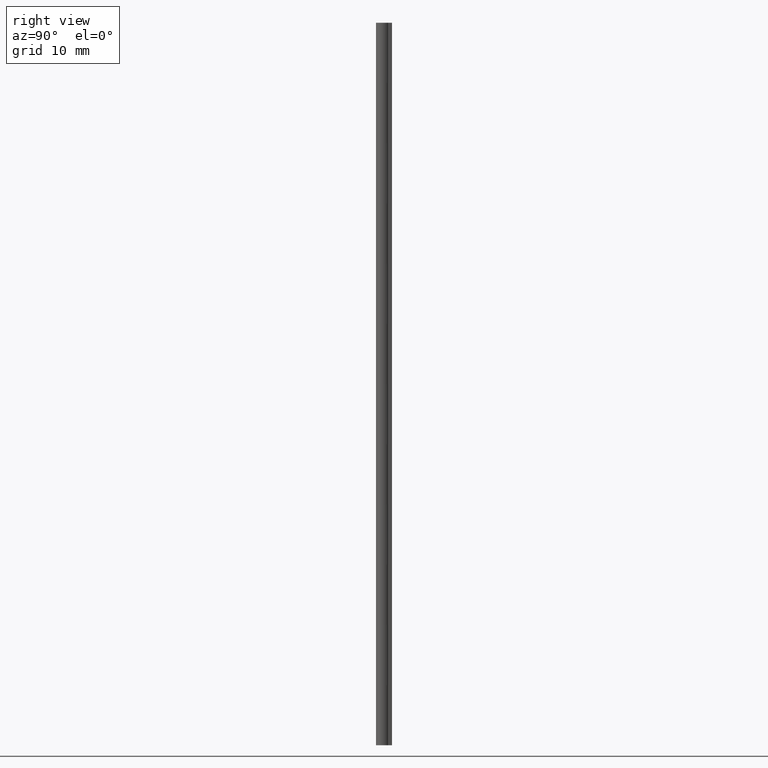
[diagram: clean part render]
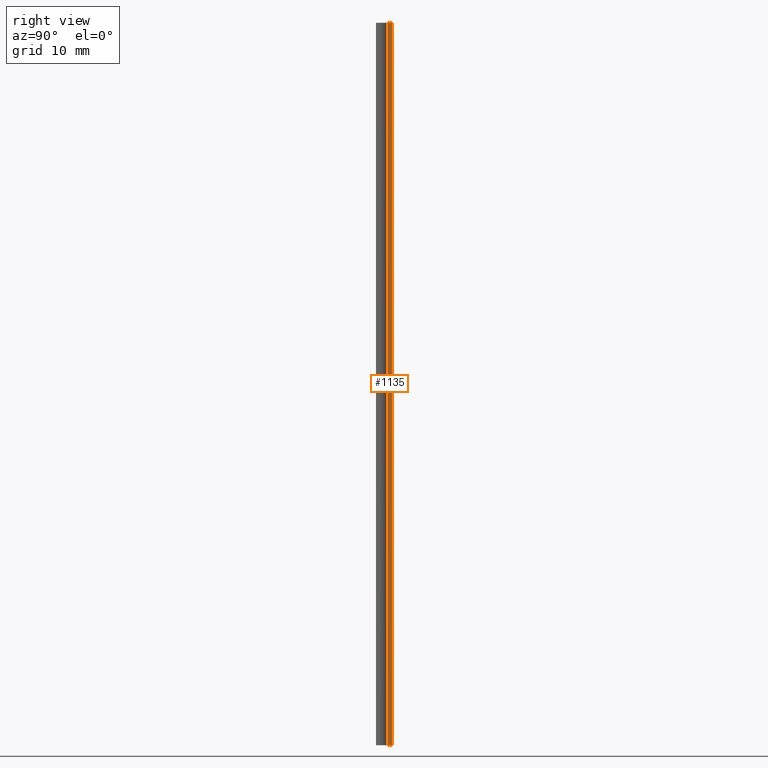
[diagram: same view with one face highlighted and labeled with its STEP entity id]
A machine part, right view. The second image highlights one B-rep face of the part: STEP entity #1135.
In plain terms, the highlighted face is a freeform B-spline surface patch.
Its self-contained STEP definition (entity closure, byte-faithful):
#1035=CARTESIAN_POINT('',(7.0,0.500000000000000,90.0));
#1036=VERTEX_POINT('',#1035);
#1037=CARTESIAN_POINT('',(7.0,1.0,90.0));
#1038=VERTEX_POINT('',#1037);
#1039=CARTESIAN_POINT('',(7.0,0.500000000000000,90.0));
#1040=CARTESIAN_POINT('',(7.0,1.0,90.0));
#1041=QUASI_UNIFORM_CURVE('',1,(#1039,#1040),.UNSPECIFIED.,.F.,.U.);
#1042=EDGE_CURVE('',#1036,#1038,#1041,.T.);
#1108=CARTESIAN_POINT('',(7.0,0.475025000969097,-4.495499825562538));
#1109=CARTESIAN_POINT('',(7.0,0.475025000969097,94.495502239550646));
#1110=CARTESIAN_POINT('',(7.0,1.024975012441948,-4.495499825562538));
#1111=CARTESIAN_POINT('',(7.0,1.024975012441948,94.495502239550646));
#1112=B_SPLINE_SURFACE_WITH_KNOTS('',1,1,((#1108,#1110),(#1109,#1111)),.UNSPECIFIED.,.F.,.F.,.U.,(2,2),(2,2),(0.0,98.991002065113179),(0.041708334948495,0.958291687403247),.UNSPECIFIED.);
#1113=CARTESIAN_POINT('',(7.0,0.500000000000000,0.0));
#1114=VERTEX_POINT('',#1113);
#1115=CARTESIAN_POINT('',(7.0,1.0,0.0));
#1116=VERTEX_POINT('',#1115);
#1117=CARTESIAN_POINT('',(7.0,0.500000000000000,0.0));
#1118=CARTESIAN_POINT('',(7.0,1.0,0.0));
#1119=QUASI_UNIFORM_CURVE('',1,(#1117,#1118),.UNSPECIFIED.,.F.,.U.);
#1120=EDGE_CURVE('',#1114,#1116,#1119,.T.);
#1121=ORIENTED_EDGE('',*,*,#1120,.T.);
#1122=CARTESIAN_POINT('',(7.0,1.0,90.0));
#1123=CARTESIAN_POINT('',(7.0,1.0,0.0));
#1124=QUASI_UNIFORM_CURVE('',1,(#1122,#1123),.UNSPECIFIED.,.F.,.U.);
#1125=EDGE_CURVE('',#1038,#1116,#1124,.T.);
#1126=ORIENTED_EDGE('',*,*,#1125,.F.);
#1127=ORIENTED_EDGE('',*,*,#1042,.F.);
#1128=CARTESIAN_POINT('',(7.0,0.500000000000000,90.0));
#1129=CARTESIAN_POINT('',(7.0,0.500000000000000,0.0));
#1130=QUASI_UNIFORM_CURVE('',1,(#1128,#1129),.UNSPECIFIED.,.F.,.U.);
#1131=EDGE_CURVE('',#1036,#1114,#1130,.T.);
#1132=ORIENTED_EDGE('',*,*,#1131,.T.);
#1133=EDGE_LOOP('',(#1121,#1126,#1127,#1132));
#1134=FACE_OUTER_BOUND('',#1133,.T.);
#1135=ADVANCED_FACE('',(#1134),#1112,.F.);